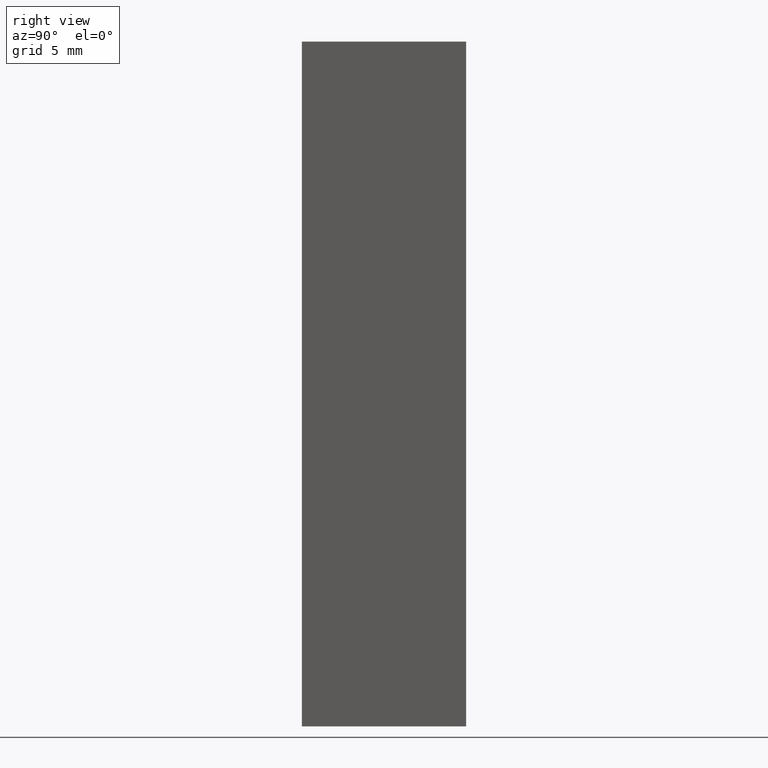
[diagram: clean part render]
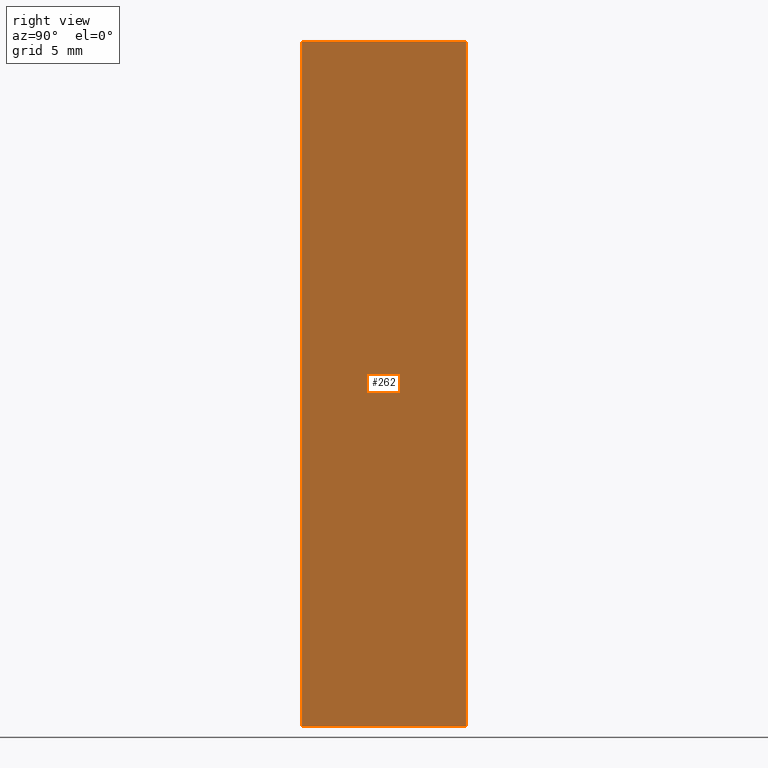
[diagram: same view with one face highlighted and labeled with its STEP entity id]
A machine part, right view. The second image highlights one B-rep face of the part: STEP entity #262.
In plain terms, the highlighted planar face has unit normal (-0.9659, 0.2588, 0).
Its self-contained STEP definition (entity closure, byte-faithful):
#2 = EDGE_CURVE ( 'NONE', #29, #44, #319, .T. ) ;
#7 = EDGE_CURVE ( 'NONE', #30, #29, #54, .T. ) ;
#12 = LINE ( 'NONE', #215, #13 ) ;
#13 = VECTOR ( 'NONE', #226, 1000.000000000000000 ) ;
#20 = LINE ( 'NONE', #249, #21 ) ;
#21 = VECTOR ( 'NONE', #217, 1000.000000000000100 ) ;
#29 = VERTEX_POINT ( 'NONE', #150 ) ;
#30 = VERTEX_POINT ( 'NONE', #151 ) ;
#35 = VERTEX_POINT ( 'NONE', #130 ) ;
#41 = DIRECTION ( 'NONE',  ( 0.2588190451025176900, 0.9659258262890690900, -0.0000000000000000000 ) ) ;
#44 = VERTEX_POINT ( 'NONE', #155 ) ;
#46 = CARTESIAN_POINT ( 'NONE',  ( 11.21539030917343300, 12.00000000000000000, 0.0000000000000000000 ) ) ;
#54 = LINE ( 'NONE', #156, #55 ) ;
#55 = VECTOR ( 'NONE', #132, 1000.000000000000000 ) ;
#56 = FACE_OUTER_BOUND ( 'NONE', #295, .T. ) ;
#115 = ORIENTED_EDGE ( 'NONE', *, *, #7, .T. ) ;
#116 = ORIENTED_EDGE ( 'NONE', *, *, #349, .F. ) ;
#128 = CARTESIAN_POINT ( 'NONE',  ( 11.21539030917343300, 12.00000000000000000, 50.00000000000000000 ) ) ;
#129 = PLANE ( 'NONE',  #365 ) ;
#130 = CARTESIAN_POINT ( 'NONE',  ( 11.21539030917343300, 12.00000000000000000, 50.00000000000000000 ) ) ;
#131 = DIRECTION ( 'NONE',  ( -0.9659258262890692000, 0.2588190451025176900, 0.0000000000000000000 ) ) ;
#132 = DIRECTION ( 'NONE',  ( -0.0000000000000000000, -0.0000000000000000000, -1.000000000000000000 ) ) ;
#139 = DIRECTION ( 'NONE',  ( -0.2588190451025176300, -0.9659258262890690900, 0.0000000000000000000 ) ) ;
#150 = CARTESIAN_POINT ( 'NONE',  ( 8.000000000000000000, -2.195599280053263200E-015, 0.0000000000000000000 ) ) ;
#151 = CARTESIAN_POINT ( 'NONE',  ( 8.000000000000000000, -2.195599280053263200E-015, 50.00000000000000000 ) ) ;
#155 = CARTESIAN_POINT ( 'NONE',  ( 11.21539030917343300, 12.00000000000000000, 0.0000000000000000000 ) ) ;
#156 = CARTESIAN_POINT ( 'NONE',  ( 8.000000000000000000, -2.195599280053263200E-015, 50.00000000000000000 ) ) ;
#215 = CARTESIAN_POINT ( 'NONE',  ( 11.21539030917343300, 12.00000000000000000, 50.00000000000000000 ) ) ;
#217 = DIRECTION ( 'NONE',  ( 0.2588190451025176900, 0.9659258262890690900, -0.0000000000000000000 ) ) ;
#226 = DIRECTION ( 'NONE',  ( -0.0000000000000000000, -0.0000000000000000000, -1.000000000000000000 ) ) ;
#249 = CARTESIAN_POINT ( 'NONE',  ( 11.21539030917343300, 12.00000000000000000, 50.00000000000000000 ) ) ;
#262 = ADVANCED_FACE ( 'NONE', ( #56 ), #129, .F. ) ;
#295 = EDGE_LOOP ( 'NONE', ( #316, #315, #116, #115 ) ) ;
#315 = ORIENTED_EDGE ( 'NONE', *, *, #345, .F. ) ;
#316 = ORIENTED_EDGE ( 'NONE', *, *, #2, .T. ) ;
#319 = LINE ( 'NONE', #46, #320 ) ;
#320 = VECTOR ( 'NONE', #41, 1000.000000000000100 ) ;
#345 = EDGE_CURVE ( 'NONE', #35, #44, #12, .T. ) ;
#349 = EDGE_CURVE ( 'NONE', #30, #35, #20, .T. ) ;
#365 = AXIS2_PLACEMENT_3D ( 'NONE', #128, #131, #139 ) ;